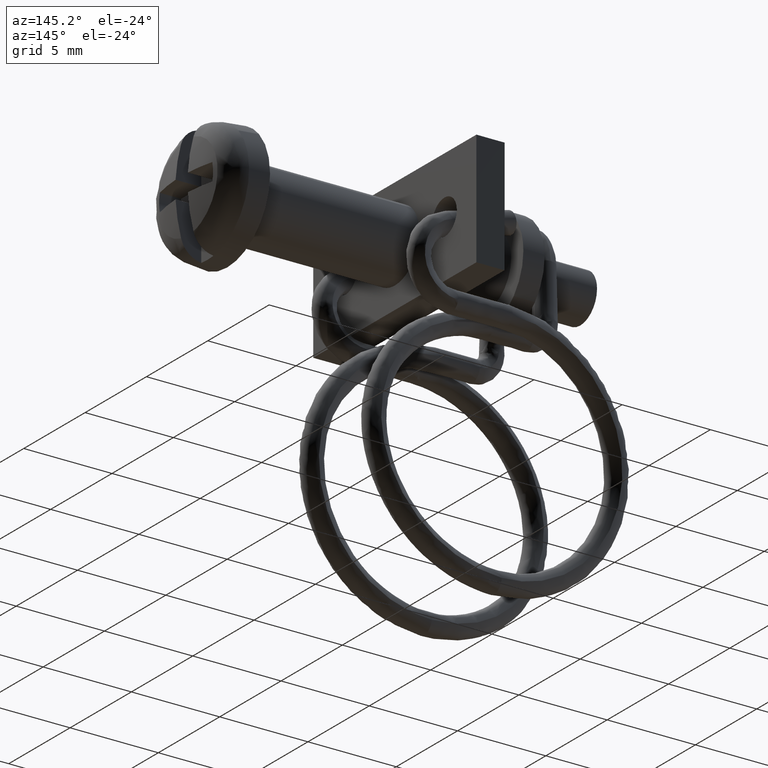
[diagram: clean part render]
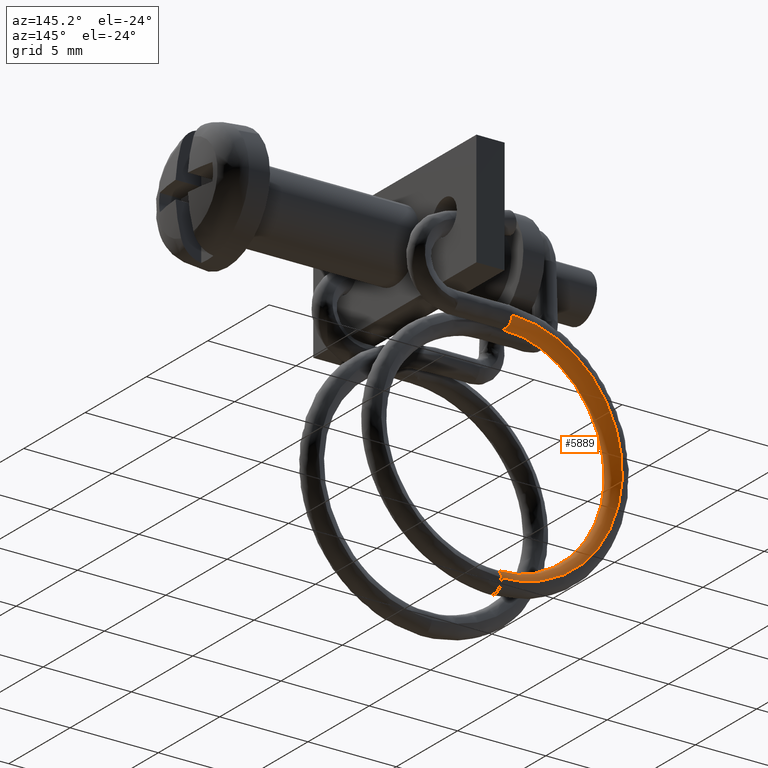
[diagram: same view with one face highlighted and labeled with its STEP entity id]
A machine part, auxiliary view. The second image highlights one B-rep face of the part: STEP entity #5889.
In plain terms, the highlighted face is a freeform B-spline surface patch.
Its self-contained STEP definition (entity closure, byte-faithful):
#5568=CARTESIAN_POINT('',(-13.150000000000089,2.250656748399047,-17.274065400749539));
#5569=VERTEX_POINT('',#5568);
#5585=CARTESIAN_POINT('',(-13.150000000000061,3.449343251644404,-17.217934598885542));
#5586=VERTEX_POINT('',#5585);
#5600=CARTESIAN_POINT('',(-13.150000000000089,2.250656748399047,-17.274065400749539));
#5601=CARTESIAN_POINT('',(-13.150000000000089,2.235961738834374,-16.960250008034659));
#5602=CARTESIAN_POINT('',(-13.150000000000080,2.508119206376980,-16.661351757755462));
#5603=CARTESIAN_POINT('',(-13.150000000000070,3.135749991802456,-16.631961738626110));
#5604=CARTESIAN_POINT('',(-13.150000000000061,3.434648242079732,-16.904119206170659));
#5605=CARTESIAN_POINT('',(-13.150000000000061,3.449343251644404,-17.217934598885542));
#5606=B_SPLINE_CURVE_WITH_KNOTS('',3,(#5600,#5601,#5602,#5603,#5604,#5605),.UNSPECIFIED.,.F.,.U.,(4,2,4),(0.500000000000000,0.750000000000000,1.0),.UNSPECIFIED.);
#5607=EDGE_CURVE('',#5569,#5586,#5606,.T.);
#5713=CARTESIAN_POINT('',(-12.939273719886160,3.150219451464109,-3.919189948786320));
#5714=CARTESIAN_POINT('',(-12.944298060906741,3.113633279203614,-4.076356440049807));
#5715=CARTESIAN_POINT('',(-12.954511379951411,3.186784981014932,-4.412427459934969));
#5716=CARTESIAN_POINT('',(-12.960274945659449,3.468847061648257,-4.610009865749449));
#5717=CARTESIAN_POINT('',(-12.961424141325240,3.786261323583786,-4.668799728287703));
#5718=CARTESIAN_POINT('',(-12.957853243771080,4.120614209726099,-4.583516775424235));
#5719=CARTESIAN_POINT('',(-12.948642099464660,4.307217419572582,-4.294555837574668));
#5720=CARTESIAN_POINT('',(-12.943576440643680,4.328742421566616,-4.134825166026501));
#5721=CARTESIAN_POINT('',(-13.009515817161590,3.149845451259051,-3.919553662283522));
#5722=CARTESIAN_POINT('',(-13.012865377159130,3.113776086320527,-4.076156298623067));
#5723=CARTESIAN_POINT('',(-13.019674254385260,3.186030373032540,-4.412851612651399));
#5724=CARTESIAN_POINT('',(-13.023516630644750,3.468911730957107,-4.609541037861111));
#5725=CARTESIAN_POINT('',(-13.024282760708161,3.786163555224715,-4.668431292675041));
#5726=CARTESIAN_POINT('',(-13.021902161485530,4.121507935530739,-4.584304085952478));
#5727=CARTESIAN_POINT('',(-13.015761396430801,4.307041747546388,-4.294037296029109));
#5728=CARTESIAN_POINT('',(-13.012384289679920,4.328782516452702,-4.135092162162319));
#5729=CARTESIAN_POINT('',(-13.079757917037959,3.149522642372155,-3.919682524401614));
#5730=CARTESIAN_POINT('',(-13.081432698845839,3.115209551535515,-4.074523268695094));
#5731=CARTESIAN_POINT('',(-13.084837139362870,3.181032671552644,-4.416238754051317));
#5732=CARTESIAN_POINT('',(-13.086758320013020,3.471565938361159,-4.608529257296670));
#5733=CARTESIAN_POINT('',(-13.087141375655980,3.784234122909520,-4.666160496425280));
#5734=CARTESIAN_POINT('',(-13.085951068390891,4.124050314608435,-4.588041404209654));
#5735=CARTESIAN_POINT('',(-13.082880688005931,4.306652458960429,-4.292511388382580));
#5736=CARTESIAN_POINT('',(-13.081192136397590,4.328856284490175,-4.135159546406981));
#5737=CARTESIAN_POINT('',(-14.028025952763370,3.149826017374536,-3.919311624526785));
#5738=CARTESIAN_POINT('',(-14.007091155561740,3.110263888684607,-4.080024062579131));
#5739=CARTESIAN_POINT('',(-13.964535615772270,3.195852081121024,-4.405675173378454));
#5740=CARTESIAN_POINT('',(-13.940520946047540,3.466706161295865,-4.608253087427065));
#5741=CARTESIAN_POINT('',(-13.935732859345840,3.786327344387582,-4.665957420808046));
#5742=CARTESIAN_POINT('',(-13.950611790209940,4.111331545690939,-4.572129907550500));
#5743=CARTESIAN_POINT('',(-13.988991509922480,4.308092458044878,-4.298624246484614));
#5744=CARTESIAN_POINT('',(-14.010098376622331,4.328997827598863,-4.134980751833083));
#5745=CARTESIAN_POINT('',(-15.773861829112329,3.125089564151713,-4.280253080799388));
#5746=CARTESIAN_POINT('',(-15.711326419211231,3.092274331999353,-4.428559674960807));
#5747=CARTESIAN_POINT('',(-15.584206301698060,3.171832548496583,-4.745379884966125));
#5748=CARTESIAN_POINT('',(-15.512469504309360,3.449018847671562,-4.937090614388026));
#5749=CARTESIAN_POINT('',(-15.498165599780879,3.762966762747186,-4.992882367453392));
#5750=CARTESIAN_POINT('',(-15.542610569487190,4.092460680019140,-4.908368810856048));
#5751=CARTESIAN_POINT('',(-15.657257822547210,4.282217339203029,-4.638758548717416));
#5752=CARTESIAN_POINT('',(-15.720308026382460,4.305450312046324,-4.488521813135863));
#5753=CARTESIAN_POINT('',(-17.260480770935541,3.059491799450330,-5.259856276876336));
#5754=CARTESIAN_POINT('',(-17.162577391174430,3.026276846766838,-5.386564817423557));
#5755=CARTESIAN_POINT('',(-16.963563169783860,3.112285292361449,-5.652771042146799));
#5756=CARTESIAN_POINT('',(-16.851256406035102,3.388431987496509,-5.818189986496862));
#5757=CARTESIAN_POINT('',(-16.828863990679810,3.704598187923338,-5.868541313972814));
#5758=CARTESIAN_POINT('',(-16.898445886555258,4.030506632949480,-5.799077230990509));
#5759=CARTESIAN_POINT('',(-17.077931289433860,4.220111241870354,-5.576850967657171));
#5760=CARTESIAN_POINT('',(-17.176638886329091,4.241023105138170,-5.448192765189236));
#5761=CARTESIAN_POINT('',(-19.116907659764671,2.934795328743689,-7.117025066250818));
#5762=CARTESIAN_POINT('',(-18.974901545602780,2.905194081493152,-7.199336025324774));
#5763=CARTESIAN_POINT('',(-18.686236237837939,2.996822845067845,-7.376527407194553));
#5764=CARTESIAN_POINT('',(-18.523336487297279,3.276612378363712,-7.491197409375104));
#5765=CARTESIAN_POINT('',(-18.490855690937050,3.592779298861733,-7.531415790995496));
#5766=CARTESIAN_POINT('',(-18.591782077848048,3.916764834908753,-7.493536305443445));
#5767=CARTESIAN_POINT('',(-18.852123419150988,4.100633558461906,-7.351340077840758));
#5768=CARTESIAN_POINT('',(-18.995297844897959,4.118953806374828,-7.267584175812359));
#5769=CARTESIAN_POINT('',(-19.836996604702911,2.818076113241145,-8.856588266641202));
#5770=CARTESIAN_POINT('',(-19.677953899051420,2.790958730830432,-8.897903063502533));
#5771=CARTESIAN_POINT('',(-19.354659855675639,2.888269587894736,-8.991236695940476));
#5772=CARTESIAN_POINT('',(-19.172221617389120,3.171155363253475,-9.058768043759541));
#5773=CARTESIAN_POINT('',(-19.135846832332359,3.488274827516801,-9.089589280299775));
#5774=CARTESIAN_POINT('',(-19.248881898187161,3.810277299668638,-9.080846231126358));
#5775=CARTESIAN_POINT('',(-19.540450851884621,3.989176566116460,-9.014330773782643));
#5776=CARTESIAN_POINT('',(-19.700797868564500,4.004565902809397,-8.971845627321573));
#5777=CARTESIAN_POINT('',(-19.836654840076609,2.583116779153464,-12.357000694768590));
#5778=CARTESIAN_POINT('',(-19.677618036953820,2.562013024442749,-12.314302730405300));
#5779=CARTESIAN_POINT('',(-19.354338074536258,2.671049988338230,-12.237507497598640));
#5780=CARTESIAN_POINT('',(-19.171911217027571,2.960241974501222,-12.209290602908700));
#5781=CARTESIAN_POINT('',(-19.135540899891438,3.278318425572730,-12.221099736784090));
#5782=CARTESIAN_POINT('',(-19.248572871159560,3.596073874579282,-12.271854731989150));
#5783=CARTESIAN_POINT('',(-19.540125557733990,3.764604403695594,-12.358987447495670));
#5784=CARTESIAN_POINT('',(-19.700462569732260,3.774422000654068,-12.401292525940590));
#5785=CARTESIAN_POINT('',(-19.116242100980539,2.466393517942322,-14.096352947240280));
#5786=CARTESIAN_POINT('',(-18.974252611278001,2.448014600336486,-14.012041241812270));
#5787=CARTESIAN_POINT('',(-18.685620448730759,2.562695357360225,-13.850871775521361));
#5788=CARTESIAN_POINT('',(-18.522737856153690,2.855165519844944,-13.775220863538770));
#5789=CARTESIAN_POINT('',(-18.490259486217290,3.174002912641437,-13.777628240159340));
#5790=CARTESIAN_POINT('',(-18.591173544143839,3.489848597378872,-13.857870324710889));
#5791=CARTESIAN_POINT('',(-18.851486761738350,3.653162335478081,-14.021128965989901));
#5792=CARTESIAN_POINT('',(-18.994646003233481,3.660047068555112,-14.105347636517649));
#5793=CARTESIAN_POINT('',(-16.640951479152339,2.300257983256488,-16.571876293163641));
#5794=CARTESIAN_POINT('',(-16.557765795044830,2.285818716255623,-16.428817946540789));
#5795=CARTESIAN_POINT('',(-16.388669806384069,2.408506133476653,-16.148151847698738));
#5796=CARTESIAN_POINT('',(-16.293247426324371,2.705508516535455,-16.005059340014931));
#5797=CARTESIAN_POINT('',(-16.274222159989939,3.025228398124181,-15.994006979269940));
#5798=CARTESIAN_POINT('',(-16.333344153982441,3.338285476041850,-16.116010943769410));
#5799=CARTESIAN_POINT('',(-16.485845829525559,3.494381569854350,-16.387046710085372));
#5800=CARTESIAN_POINT('',(-16.569713433882900,3.497290942113370,-16.530509098526689));
#5801=CARTESIAN_POINT('',(-14.905612055094791,2.251864695087457,-17.292886444783331));
#5802=CARTESIAN_POINT('',(-14.863753558923200,2.238630709843156,-17.132515576421429));
#5803=CARTESIAN_POINT('',(-14.778664550923510,2.363705099113740,-16.816942115129301));
#5804=CARTESIAN_POINT('',(-14.730646412426029,2.661953959800202,-16.654106307976392));
#5805=CARTESIAN_POINT('',(-14.721071658645849,2.981920174728736,-16.639124178915640));
#5806=CARTESIAN_POINT('',(-14.750821226627821,3.294078621145911,-16.773377728295952));
#5807=CARTESIAN_POINT('',(-14.827562198390680,3.448091307036933,-17.075881204154570));
#5808=CARTESIAN_POINT('',(-14.869765982308110,3.449899309266602,-17.236785878986641));
#5809=CARTESIAN_POINT('',(-13.079775497596630,2.251883457024818,-17.292870529647349));
#5810=CARTESIAN_POINT('',(-13.081449849921500,2.238485048095356,-17.132692942931730));
#5811=CARTESIAN_POINT('',(-13.084853426966330,2.363432734417001,-16.816985064164580));
#5812=CARTESIAN_POINT('',(-13.086774147255261,2.661894187537803,-16.654153123589630));
#5813=CARTESIAN_POINT('',(-13.087157130952139,2.981974797043545,-16.639164710894828));
#5814=CARTESIAN_POINT('',(-13.085967143117371,3.294346715780600,-16.773393270496431));
#5815=CARTESIAN_POINT('',(-13.082897521327750,3.448250230218984,-17.076043286469719));
#5816=CARTESIAN_POINT('',(-13.081209382834169,3.449878977251184,-17.236772097110400));
#5817=CARTESIAN_POINT('',(-13.009550949395569,2.251886385110084,-17.292870040611970));
#5818=CARTESIAN_POINT('',(-13.012899679365420,2.238499917880689,-17.132673348017221));
#5819=CARTESIAN_POINT('',(-13.019706867811539,2.363452569077532,-16.816994063723051));
#5820=CARTESIAN_POINT('',(-13.023548300723361,2.661896553641817,-16.654156152402340));
#5821=CARTESIAN_POINT('',(-13.024314258242740,2.981972081745371,-16.639168003757611));
#5822=CARTESIAN_POINT('',(-13.021934275180330,3.294327064018139,-16.773404338805229));
#5823=CARTESIAN_POINT('',(-13.015795066658599,3.448232716951438,-17.076025075462400));
#5824=CARTESIAN_POINT('',(-13.012418815736210,3.449875191252582,-17.236771922698740));
#5825=CARTESIAN_POINT('',(-12.939326423595411,2.251883038657685,-17.292876431325869));
#5826=CARTESIAN_POINT('',(-12.944349512827150,2.238508149745584,-17.132661840440161));
#5827=CARTESIAN_POINT('',(-12.954560291408210,2.363460154616459,-16.817001429608791));
#5828=CARTESIAN_POINT('',(-12.960322447503000,2.661896654637009,-16.654158549710981));
#5829=CARTESIAN_POINT('',(-12.961471391248450,2.981971611674630,-16.639170442503751));
#5830=CARTESIAN_POINT('',(-12.957901423338150,3.294319593759295,-16.773412337049010));
#5831=CARTESIAN_POINT('',(-12.948692606310351,3.448223007962925,-17.076014548576481));
#5832=CARTESIAN_POINT('',(-12.943628224079260,3.449878630261568,-17.236778031167070));
#5833=B_SPLINE_SURFACE_WITH_KNOTS('',3,3,((#5713,#5721,#5729,#5737,#5745,#5753,#5761,#5769,#5777,#5785,#5793,#5801,#5809,#5817,#5825),(#5714,#5722,#5730,#5738,#5746,#5754,#5762,#5770,#5778,#5786,#5794,#5802,#5810,#5818,#5826),(#5715,#5723,#5731,#5739,#5747,#5755,#5763,#5771,#5779,#5787,#5795,#5803,#5811,#5819,#5827),(#5716,#5724,#5732,#5740,#5748,#5756,#5764,#5772,#5780,#5788,#5796,#5804,#5812,#5820,#5828),(#5717,#5725,#5733,#5741,#5749,#5757,#5765,#5773,#5781,#5789,#5797,#5805,#5813,#5821,#5829),(#5718,#5726,#5734,#5742,#5750,#5758,#5766,#5774,#5782,#5790,#5798,#5806,#5814,#5822,#5830),(#5719,#5727,#5735,#5743,#5751,#5759,#5767,#5775,#5783,#5791,#5799,#5807,#5815,#5823,#5831),(#5720,#5728,#5736,#5744,#5752,#5760,#5768,#5776,#5784,#5792,#5800,#5808,#5816,#5824,#5832)),.UNSPECIFIED.,.F.,.F.,.U.,(4,1,2,1,4),(4,2,1,2,2,2,2,4),(0.0,0.482733510695720,0.965467021391439,1.448200532086968,1.930934042782496),(0.0,0.210727454279333,2.844820632771107,5.478913811262881,10.747100168246419,16.015286525230000,21.283472882213520,21.494200336492799),.UNSPECIFIED.);
#5834=CARTESIAN_POINT('',(-13.150000000000009,3.145653070556188,-3.938101345695220));
#5835=VERTEX_POINT('',#5834);
#5836=CARTESIAN_POINT('',(-13.150000000000009,3.145653070556188,-3.938101345695220));
#5837=CARTESIAN_POINT('',(-14.901131700112190,3.145653070556188,-3.938101345695217));
#5838=CARTESIAN_POINT('',(-16.631893349900611,3.097377385168218,-4.657437045044949));
#5839=CARTESIAN_POINT('',(-19.100218992933510,2.931659823663166,-7.126724782618235));
#5840=CARTESIAN_POINT('',(-19.818305452095561,2.815238931800335,-8.861463563878226));
#5841=CARTESIAN_POINT('',(-19.817964383036529,2.580983437006632,-12.352006240866629));
#5842=CARTESIAN_POINT('',(-19.099555397283030,2.464581163917035,-14.086467591599650));
#5843=CARTESIAN_POINT('',(-16.631174964140929,2.298908495840816,-16.555086391081218));
#5844=CARTESIAN_POINT('',(-14.900693128756620,2.250656748374618,-17.274065400749539));
#5845=CARTESIAN_POINT('',(-13.150000000000000,2.250656748374618,-17.274065400749539));
#5846=B_SPLINE_CURVE_WITH_KNOTS('',3,(#5836,#5837,#5838,#5839,#5840,#5841,#5842,#5843,#5844,#5845),.UNSPECIFIED.,.F.,.U.,(4,2,2,2,4),(0.095930252284910,0.136568721280779,0.177207190276649,0.217845659272519,0.258484128268389),.UNSPECIFIED.);
#5847=EDGE_CURVE('',#5835,#5569,#5846,.T.);
#5848=ORIENTED_EDGE('',*,*,#5847,.T.);
#5849=ORIENTED_EDGE('',*,*,#5607,.T.);
#5850=CARTESIAN_POINT('',(-13.150000000000031,4.326090075128983,-4.153898653909385));
#5851=VERTEX_POINT('',#5850);
#5852=CARTESIAN_POINT('',(-13.150000000000031,4.326090075128983,-4.153898653909385));
#5853=CARTESIAN_POINT('',(-14.865255944491169,4.326090075128983,-4.153898653909380));
#5854=CARTESIAN_POINT('',(-16.560602209698370,4.278804068208231,-4.858487570353359));
#5855=CARTESIAN_POINT('',(-18.978541504241569,4.116469327291372,-7.277369320049325));
#5856=CARTESIAN_POINT('',(-19.682032084391022,4.002418577782390,-8.976791606196168));
#5857=CARTESIAN_POINT('',(-19.681697954478089,3.772929078049697,-12.396318193804920));
#5858=CARTESIAN_POINT('',(-18.977891430051709,3.658896571529003,-14.095468648839040));
#5859=CARTESIAN_POINT('',(-16.559898513111850,3.496605810931052,-16.513695066309040));
#5860=CARTESIAN_POINT('',(-14.864826364953700,3.449343251628117,-17.217934598885542));
#5861=CARTESIAN_POINT('',(-13.150000000000000,3.449343251628117,-17.217934598885542));
#5862=B_SPLINE_CURVE_WITH_KNOTS('',3,(#5852,#5853,#5854,#5855,#5856,#5857,#5858,#5859,#5860,#5861),.UNSPECIFIED.,.F.,.U.,(4,2,2,2,4),(0.095930252284910,0.136568721280779,0.177207190276649,0.217845659272519,0.258484128268389),.UNSPECIFIED.);
#5863=EDGE_CURVE('',#5851,#5586,#5862,.T.);
#5864=ORIENTED_EDGE('',*,*,#5863,.F.);
#5865=CARTESIAN_POINT('',(-13.150000000000020,3.582007091133515,-4.625897773109799));
#5866=VERTEX_POINT('',#5865);
#5867=CARTESIAN_POINT('',(-13.150000000000020,3.582007091133515,-4.625897773109799));
#5868=CARTESIAN_POINT('',(-13.150000000000020,3.597173313064922,-4.629967055347854));
#5869=CARTESIAN_POINT('',(-13.150000000000020,3.612505560242036,-4.633427371518984));
#5870=CARTESIAN_POINT('',(-13.150000000000020,3.782483808049738,-4.664495942107790));
#5871=CARTESIAN_POINT('',(-13.150000000000020,3.947681442749150,-4.628953708481716));
#5872=CARTESIAN_POINT('',(-13.150000000000031,4.206155917979907,-4.450366788435373));
#5873=CARTESIAN_POINT('',(-13.150000000000031,4.297841115931625,-4.308421810393877));
#5874=CARTESIAN_POINT('',(-13.150000000000031,4.326090075128983,-4.153898653909385));
#5875=B_SPLINE_CURVE_WITH_KNOTS('',3,(#5867,#5868,#5869,#5870,#5871,#5872,#5873,#5874),.UNSPECIFIED.,.F.,.U.,(4,2,2,4),(0.737495030334433,0.750000000000000,0.875000000000000,1.0),.UNSPECIFIED.);
#5876=EDGE_CURVE('',#5866,#5851,#5875,.T.);
#5877=ORIENTED_EDGE('',*,*,#5876,.F.);
#5878=CARTESIAN_POINT('',(-13.150000000000009,3.145653070556188,-3.938101345695220));
#5879=CARTESIAN_POINT('',(-13.150000000000009,3.117403914244552,-4.092625236741761));
#5880=CARTESIAN_POINT('',(-13.150000000000020,3.152937871458705,-4.257828088958230));
#5881=CARTESIAN_POINT('',(-13.150000000000020,3.322576326708899,-4.503383517497030));
#5882=CARTESIAN_POINT('',(-13.150000000000020,3.445573626232474,-4.589281984321889));
#5883=CARTESIAN_POINT('',(-13.150000000000020,3.582007091133515,-4.625897773109799));
#5884=B_SPLINE_CURVE_WITH_KNOTS('',3,(#5878,#5879,#5880,#5881,#5882,#5883),.UNSPECIFIED.,.F.,.U.,(4,2,4),(0.500000000000000,0.625000000000000,0.737495030334433),.UNSPECIFIED.);
#5885=EDGE_CURVE('',#5835,#5866,#5884,.T.);
#5886=ORIENTED_EDGE('',*,*,#5885,.F.);
#5887=EDGE_LOOP('',(#5848,#5849,#5864,#5877,#5886));
#5888=FACE_OUTER_BOUND('',#5887,.T.);
#5889=ADVANCED_FACE('',(#5888),#5833,.F.);